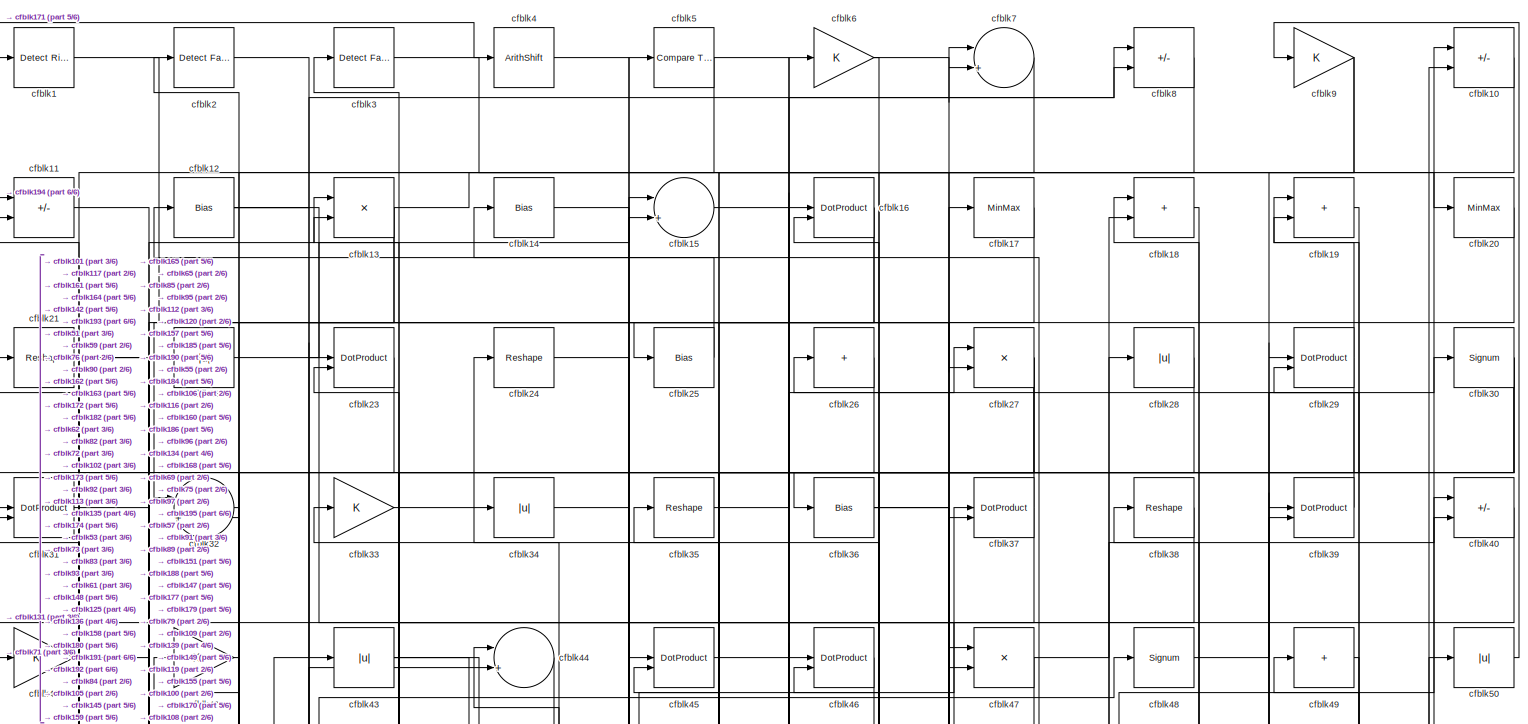
[diagram: root canvas - part 1/6, full width, top band]
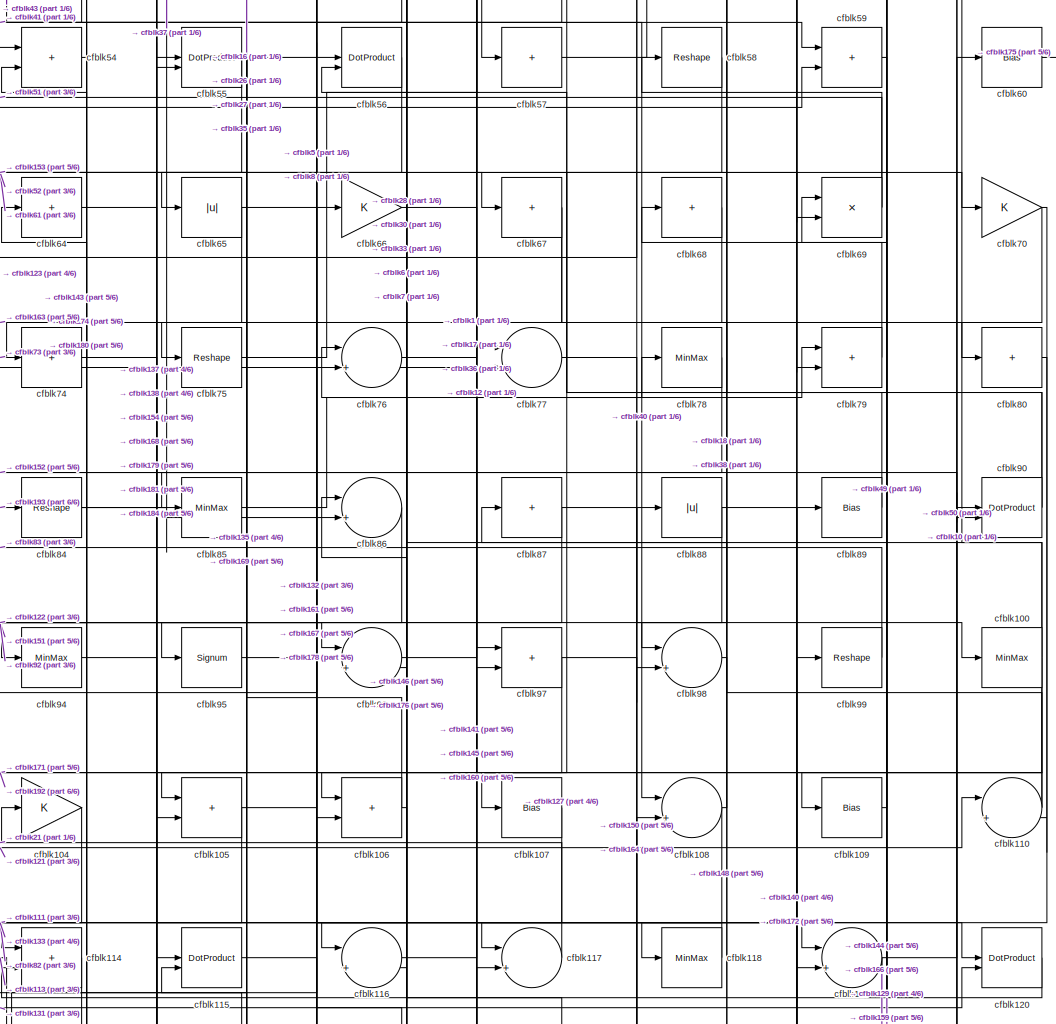
[diagram: root canvas - part 2/6, central region]
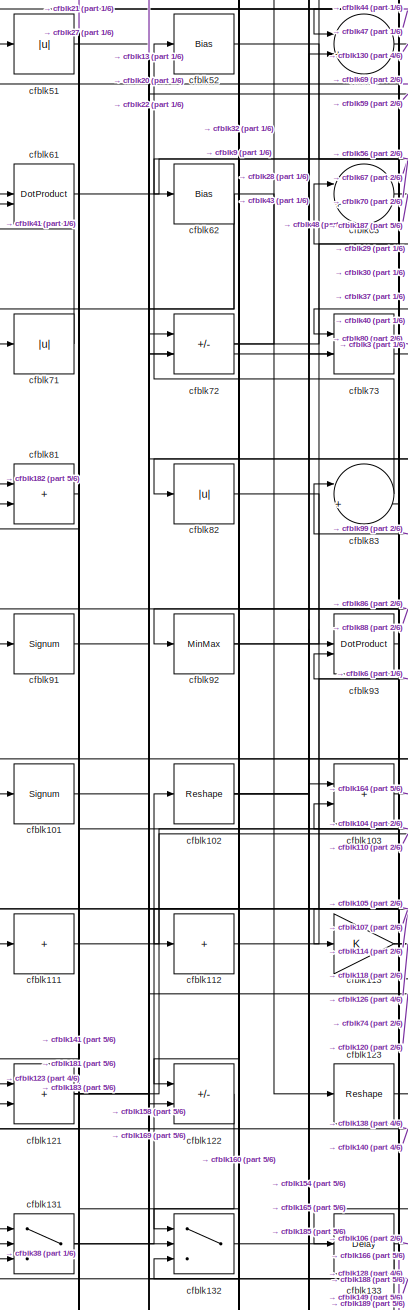
[diagram: root canvas - part 3/6, middle left region]
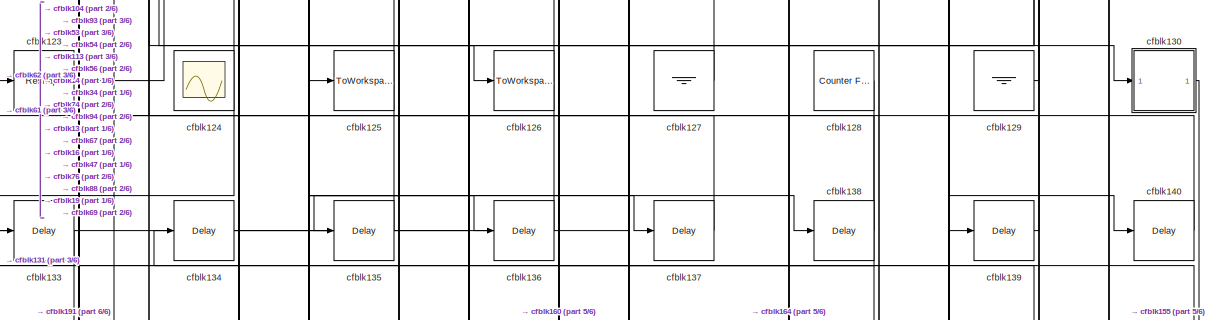
[diagram: root canvas - part 4/6, full width, middle band]
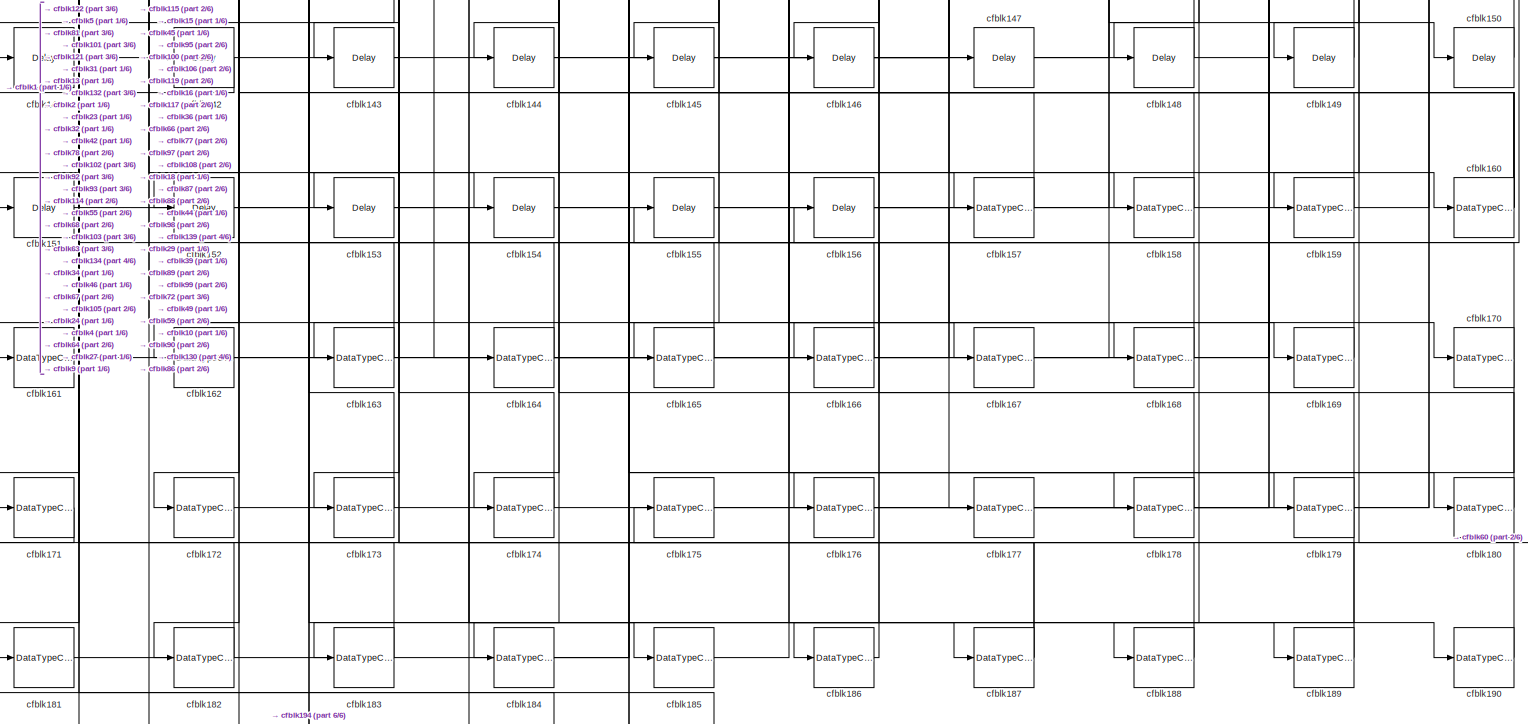
[diagram: root canvas - part 5/6, full width, bottom band]
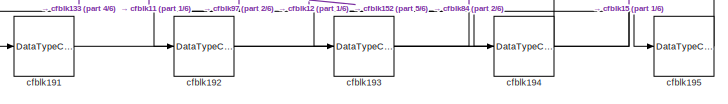
[diagram: root canvas - part 6/6, bottom left region]
MODEL slx_bc5b32de92f5
KIND model
CONFIG AbsTol = auto
CONFIG EnableMultiTasking = off
CONFIG FixedStep = auto
CONFIG MaxStep = auto
CONFIG MinStep = auto
CONFIG RelTol = 1e-3
CONFIG SampleTimeConstraint = Unconstrained
CONFIG SolverName = VariableStepAuto
CONFIG StartTime = 0.0
CONFIG StopTime = 10.0
BLOCK [Reference] cfblk1  REF=hdlsllib/Logic and Bit
Operations/Detect Rise
Positive
  SourceBlock = hdlsllib/Logic and Bit\nOperations/Detect Rise\nPositive
  SourceType = Detect Rise Positive
BLOCK [Sum] cfblk10
  IconShape = rectangular
  Inputs = +-
BLOCK [MinMax] cfblk100
BLOCK [Signum] cfblk101
BLOCK [Reshape] cfblk102
BLOCK [Sum] cfblk103
  IconShape = rectangular
BLOCK [Gain] cfblk104
BLOCK [Sum] cfblk105
  IconShape = rectangular
BLOCK [Sum] cfblk106
  IconShape = rectangular
BLOCK [Bias] cfblk107
  Bias = 0.0
  SaturateOnIntegerOverflow = off
BLOCK [Sum] cfblk108
  Inputs = |++
BLOCK [Bias] cfblk109
  Bias = 0.0
  SaturateOnIntegerOverflow = off
BLOCK [Sum] cfblk11
  IconShape = rectangular
  Inputs = +-
BLOCK [Sum] cfblk110
  Inputs = |++
BLOCK [Sum] cfblk111
  IconShape = rectangular
  Inputs = +
BLOCK [Sum] cfblk112
  IconShape = rectangular
  Inputs = +
BLOCK [Gain] cfblk113
BLOCK [Sum] cfblk114
  IconShape = rectangular
BLOCK [DotProduct] cfblk115
  OutDataTypeStr = Inherit: Inherit via internal rule
BLOCK [Sum] cfblk116
  Inputs = |++
BLOCK [Sum] cfblk117
  Inputs = |++
BLOCK [MinMax] cfblk118
BLOCK [Sum] cfblk119
  Inputs = |++
BLOCK [Bias] cfblk12
  Bias = 0.0
  SaturateOnIntegerOverflow = off
BLOCK [DotProduct] cfblk120
  OutDataTypeStr = Inherit: Inherit via internal rule
BLOCK [Sum] cfblk121
  IconShape = rectangular
BLOCK [Sum] cfblk122
  IconShape = rectangular
  Inputs = +-
BLOCK [Reshape] cfblk123
BLOCK [Scope] cfblk124
  Floating = on
  NumInputPorts = 1
  ScopeSpecificationString = Simulink.scopes.TimeScopeBlockCfg('CurrentConfiguration', extmgr.ConfigurationSet(extmgr.Configuration('Core','General UI',true,'FigureColor',[0.156862745098039 0.156862745098039 0.156862745098039]),extmgr.Configuration('Core','Source UI',true),extmgr.Configuration('Sources','WiredSimulink',true,'DataLoggingVariableName','ScopeData1','DataLoggingSaveFormat','StructureWithTime','DataLoggingLimitDat...<+2713ch>
BLOCK [ToWorkspace] cfblk125
  MaxDataPoints = inf
  SampleTime = -1
  SaveFormat = Timeseries
  VariableName = simout
BLOCK [ToWorkspace] cfblk126
  MaxDataPoints = inf
  SampleTime = -1
  SaveFormat = Timeseries
  VariableName = simout
BLOCK [Ground] cfblk127
BLOCK [Reference] cfblk128  REF=hdlsllib/Sources/Counter
Free-Running
  SourceBlock = hdlsllib/Sources/Counter\nFree-Running
  SourceType = Counter Free-Running
BLOCK [Ground] cfblk129
BLOCK [Product] cfblk13
  Inputs = */
  RndMeth = Zero
  SaturateOnIntegerOverflow = on
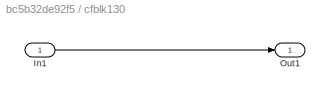
BLOCK [SubSystem] cfblk130
  LibrarySourceBlock = hdlsllib/Ports &\nSubsystems/Subsystem
BLOCK [Inport] cfblk130/In1
BLOCK [Outport] cfblk130/Out1
BLOCK [Switch] cfblk131
  InputSameDT = off
  SaturateOnIntegerOverflow = off
BLOCK [Switch] cfblk132
  InputSameDT = off
  SaturateOnIntegerOverflow = off
BLOCK [Delay] cfblk133
  InputPortMap = u0
  SampleTime = 1
BLOCK [Delay] cfblk134
  InputPortMap = u0
  SampleTime = 1
BLOCK [Delay] cfblk135
  InputPortMap = u0
  SampleTime = 1
BLOCK [Delay] cfblk136
  InputPortMap = u0
  SampleTime = 1
BLOCK [Delay] cfblk137
  InputPortMap = u0
  SampleTime = 1
BLOCK [Delay] cfblk138
  InputPortMap = u0
  SampleTime = 1
BLOCK [Delay] cfblk139
  InputPortMap = u0
  SampleTime = 1
BLOCK [Bias] cfblk14
  Bias = 0.0
  SaturateOnIntegerOverflow = off
BLOCK [Delay] cfblk140
  InputPortMap = u0
  SampleTime = 1
BLOCK [Delay] cfblk141
  InputPortMap = u0
  SampleTime = 1
BLOCK [Delay] cfblk142
  InputPortMap = u0
  SampleTime = 1
BLOCK [Delay] cfblk143
  InputPortMap = u0
  SampleTime = 1
BLOCK [Delay] cfblk144
  InputPortMap = u0
  SampleTime = 1
BLOCK [Delay] cfblk145
  InputPortMap = u0
  SampleTime = 1
BLOCK [Delay] cfblk146
  InputPortMap = u0
  SampleTime = 1
BLOCK [Delay] cfblk147
  InputPortMap = u0
  SampleTime = 1
BLOCK [Delay] cfblk148
  InputPortMap = u0
  SampleTime = 1
BLOCK [Delay] cfblk149
  InputPortMap = u0
  SampleTime = 1
BLOCK [Sum] cfblk15
  Inputs = |++
BLOCK [Delay] cfblk150
  InputPortMap = u0
  SampleTime = 1
BLOCK [Delay] cfblk151
  InputPortMap = u0
  SampleTime = 1
BLOCK [Delay] cfblk152
  InputPortMap = u0
  SampleTime = 1
BLOCK [Delay] cfblk153
  InputPortMap = u0
  SampleTime = 1
BLOCK [Delay] cfblk154
  InputPortMap = u0
  SampleTime = 1
BLOCK [Delay] cfblk155
  InputPortMap = u0
  SampleTime = 1
BLOCK [Delay] cfblk156
  InputPortMap = u0
  SampleTime = 1
BLOCK [DataTypeConversion] cfblk157
  OutDataTypeStr = uint8
  RndMeth = Floor
  SaturateOnIntegerOverflow = off
BLOCK [DataTypeConversion] cfblk158
  OutDataTypeStr = uint8
  RndMeth = Floor
  SaturateOnIntegerOverflow = off
BLOCK [DataTypeConversion] cfblk159
  OutDataTypeStr = uint8
  RndMeth = Floor
  SaturateOnIntegerOverflow = off
BLOCK [DotProduct] cfblk16
  OutDataTypeStr = Inherit: Inherit via internal rule
BLOCK [DataTypeConversion] cfblk160
  RndMeth = Floor
  SaturateOnIntegerOverflow = off
BLOCK [DataTypeConversion] cfblk161
  OutDataTypeStr = uint8
  RndMeth = Floor
  SaturateOnIntegerOverflow = off
BLOCK [DataTypeConversion] cfblk162
  OutDataTypeStr = uint8
  RndMeth = Floor
  SaturateOnIntegerOverflow = off
BLOCK [DataTypeConversion] cfblk163
  OutDataTypeStr = uint8
  RndMeth = Floor
  SaturateOnIntegerOverflow = off
BLOCK [DataTypeConversion] cfblk164
  RndMeth = Floor
  SaturateOnIntegerOverflow = off
BLOCK [DataTypeConversion] cfblk165
  OutDataTypeStr = uint8
  RndMeth = Floor
  SaturateOnIntegerOverflow = off
BLOCK [DataTypeConversion] cfblk166
  OutDataTypeStr = uint8
  RndMeth = Floor
  SaturateOnIntegerOverflow = off
BLOCK [DataTypeConversion] cfblk167
  OutDataTypeStr = uint8
  RndMeth = Floor
  SaturateOnIntegerOverflow = off
BLOCK [DataTypeConversion] cfblk168
  OutDataTypeStr = uint8
  RndMeth = Floor
  SaturateOnIntegerOverflow = off
BLOCK [DataTypeConversion] cfblk169
  OutDataTypeStr = uint8
  RndMeth = Floor
  SaturateOnIntegerOverflow = off
BLOCK [MinMax] cfblk17
BLOCK [DataTypeConversion] cfblk170
  RndMeth = Floor
  SaturateOnIntegerOverflow = off
BLOCK [DataTypeConversion] cfblk171
  OutDataTypeStr = uint8
  RndMeth = Floor
  SaturateOnIntegerOverflow = off
BLOCK [DataTypeConversion] cfblk172
  OutDataTypeStr = uint8
  RndMeth = Floor
  SaturateOnIntegerOverflow = off
BLOCK [DataTypeConversion] cfblk173
  OutDataTypeStr = uint8
  RndMeth = Floor
  SaturateOnIntegerOverflow = off
BLOCK [DataTypeConversion] cfblk174
  OutDataTypeStr = uint8
  RndMeth = Floor
  SaturateOnIntegerOverflow = off
BLOCK [DataTypeConversion] cfblk175
  OutDataTypeStr = uint8
  RndMeth = Floor
  SaturateOnIntegerOverflow = off
BLOCK [DataTypeConversion] cfblk176
  OutDataTypeStr = uint8
  RndMeth = Floor
  SaturateOnIntegerOverflow = off
BLOCK [DataTypeConversion] cfblk177
  OutDataTypeStr = uint8
  RndMeth = Floor
  SaturateOnIntegerOverflow = off
BLOCK [DataTypeConversion] cfblk178
  OutDataTypeStr = uint8
  RndMeth = Floor
  SaturateOnIntegerOverflow = off
BLOCK [DataTypeConversion] cfblk179
  RndMeth = Floor
  SaturateOnIntegerOverflow = off
BLOCK [Sum] cfblk18
  IconShape = rectangular
BLOCK [DataTypeConversion] cfblk180
  OutDataTypeStr = uint8
  RndMeth = Floor
  SaturateOnIntegerOverflow = off
BLOCK [DataTypeConversion] cfblk181
  OutDataTypeStr = uint8
  RndMeth = Floor
  SaturateOnIntegerOverflow = off
BLOCK [DataTypeConversion] cfblk182
  OutDataTypeStr = uint8
  RndMeth = Floor
  SaturateOnIntegerOverflow = off
BLOCK [DataTypeConversion] cfblk183
  OutDataTypeStr = uint8
  RndMeth = Floor
  SaturateOnIntegerOverflow = off
BLOCK [DataTypeConversion] cfblk184
  OutDataTypeStr = uint8
  RndMeth = Floor
  SaturateOnIntegerOverflow = off
BLOCK [DataTypeConversion] cfblk185
  OutDataTypeStr = uint8
  RndMeth = Floor
  SaturateOnIntegerOverflow = off
BLOCK [DataTypeConversion] cfblk186
  OutDataTypeStr = uint8
  RndMeth = Floor
  SaturateOnIntegerOverflow = off
BLOCK [DataTypeConversion] cfblk187
  RndMeth = Floor
  SaturateOnIntegerOverflow = off
BLOCK [DataTypeConversion] cfblk188
  OutDataTypeStr = uint8
  RndMeth = Floor
  SaturateOnIntegerOverflow = off
BLOCK [DataTypeConversion] cfblk189
  OutDataTypeStr = uint8
  RndMeth = Floor
  SaturateOnIntegerOverflow = off
BLOCK [Sum] cfblk19
  IconShape = rectangular
BLOCK [DataTypeConversion] cfblk190
  OutDataTypeStr = uint8
  RndMeth = Floor
  SaturateOnIntegerOverflow = off
BLOCK [DataTypeConversion] cfblk191
  OutDataTypeStr = uint8
  RndMeth = Floor
  SaturateOnIntegerOverflow = off
BLOCK [DataTypeConversion] cfblk192
  OutDataTypeStr = uint8
  RndMeth = Floor
  SaturateOnIntegerOverflow = off
BLOCK [DataTypeConversion] cfblk193
  OutDataTypeStr = uint8
  RndMeth = Floor
  SaturateOnIntegerOverflow = off
BLOCK [DataTypeConversion] cfblk194
  OutDataTypeStr = uint8
  RndMeth = Floor
  SaturateOnIntegerOverflow = off
BLOCK [DataTypeConversion] cfblk195
  OutDataTypeStr = uint8
  RndMeth = Floor
  SaturateOnIntegerOverflow = off
BLOCK [Reference] cfblk2  REF=hdlsllib/Logic and Bit
Operations/Detect Fall
Nonpositive
  SourceBlock = hdlsllib/Logic and Bit\nOperations/Detect Fall\nNonpositive
  SourceType = Detect Fall Nonpositive
BLOCK [MinMax] cfblk20
BLOCK [Reshape] cfblk21
BLOCK [Abs] cfblk22
  SaturateOnIntegerOverflow = off
BLOCK [DotProduct] cfblk23
  OutDataTypeStr = Inherit: Inherit via internal rule
BLOCK [Reshape] cfblk24
BLOCK [Bias] cfblk25
  Bias = 0.0
  SaturateOnIntegerOverflow = off
BLOCK [Sum] cfblk26
  IconShape = rectangular
  Inputs = +
BLOCK [Product] cfblk27
  Inputs = */
  RndMeth = Zero
  SaturateOnIntegerOverflow = on
BLOCK [Abs] cfblk28
  SaturateOnIntegerOverflow = off
BLOCK [DotProduct] cfblk29
  OutDataTypeStr = Inherit: Inherit via internal rule
BLOCK [Reference] cfblk3  REF=hdlsllib/Logic and Bit
Operations/Detect Fall
Nonpositive
  SourceBlock = hdlsllib/Logic and Bit\nOperations/Detect Fall\nNonpositive
  SourceType = Detect Fall Nonpositive
BLOCK [Signum] cfblk30
BLOCK [DotProduct] cfblk31
  OutDataTypeStr = Inherit: Inherit via internal rule
BLOCK [Sum] cfblk32
  Inputs = |++
BLOCK [Gain] cfblk33
BLOCK [Abs] cfblk34
  SaturateOnIntegerOverflow = off
BLOCK [Reshape] cfblk35
BLOCK [Bias] cfblk36
  Bias = 0.0
  SaturateOnIntegerOverflow = off
BLOCK [DotProduct] cfblk37
  OutDataTypeStr = Inherit: Inherit via internal rule
BLOCK [Reshape] cfblk38
BLOCK [DotProduct] cfblk39
  OutDataTypeStr = Inherit: Inherit via internal rule
BLOCK [ArithShift] cfblk4
  BitShiftNumber = 8
  InputPortMap = u0
BLOCK [Sum] cfblk40
  IconShape = rectangular
  Inputs = +-
BLOCK [Gain] cfblk41
BLOCK [Gain] cfblk42
BLOCK [Abs] cfblk43
  SaturateOnIntegerOverflow = off
BLOCK [Sum] cfblk44
  Inputs = |++
BLOCK [DotProduct] cfblk45
  OutDataTypeStr = Inherit: Inherit via internal rule
BLOCK [DotProduct] cfblk46
  OutDataTypeStr = Inherit: Inherit via internal rule
BLOCK [Product] cfblk47
  Inputs = */
  RndMeth = Zero
  SaturateOnIntegerOverflow = on
BLOCK [Signum] cfblk48
BLOCK [Sum] cfblk49
  IconShape = rectangular
  Inputs = +
BLOCK [Reference] cfblk5  REF=hdlsllib/Logic and Bit
Operations/Compare
To Constant
  SourceBlock = hdlsllib/Logic and Bit\nOperations/Compare\nTo Constant
  SourceType = Compare To Constant
BLOCK [Abs] cfblk50
  SaturateOnIntegerOverflow = off
BLOCK [Abs] cfblk51
  SaturateOnIntegerOverflow = off
BLOCK [Bias] cfblk52
  Bias = 0.0
  SaturateOnIntegerOverflow = off
BLOCK [Sum] cfblk53
  Inputs = |++
BLOCK [Sum] cfblk54
  IconShape = rectangular
BLOCK [DotProduct] cfblk55
  OutDataTypeStr = Inherit: Inherit via internal rule
BLOCK [DotProduct] cfblk56
  OutDataTypeStr = Inherit: Inherit via internal rule
BLOCK [Sum] cfblk57
  IconShape = rectangular
  Inputs = +
BLOCK [Reshape] cfblk58
BLOCK [Sum] cfblk59
  IconShape = rectangular
BLOCK [Gain] cfblk6
BLOCK [Bias] cfblk60
  Bias = 0.0
  SaturateOnIntegerOverflow = off
BLOCK [DotProduct] cfblk61
  OutDataTypeStr = Inherit: Inherit via internal rule
BLOCK [Bias] cfblk62
  Bias = 0.0
  SaturateOnIntegerOverflow = off
BLOCK [Sum] cfblk63
  Inputs = |++
BLOCK [Sum] cfblk64
  IconShape = rectangular
  Inputs = +
BLOCK [Abs] cfblk65
  SaturateOnIntegerOverflow = off
BLOCK [Gain] cfblk66
BLOCK [Sum] cfblk67
  IconShape = rectangular
  Inputs = +
BLOCK [Sum] cfblk68
  IconShape = rectangular
  Inputs = +
BLOCK [Product] cfblk69
  Inputs = */
  RndMeth = Zero
  SaturateOnIntegerOverflow = on
BLOCK [Sum] cfblk7
  Inputs = |++
BLOCK [Gain] cfblk70
BLOCK [Abs] cfblk71
  SaturateOnIntegerOverflow = off
BLOCK [Sum] cfblk72
  IconShape = rectangular
  Inputs = +-
BLOCK [Sum] cfblk73
  IconShape = rectangular
  Inputs = +-
BLOCK [Sum] cfblk74
  IconShape = rectangular
  Inputs = +
BLOCK [Reshape] cfblk75
BLOCK [Sum] cfblk76
  Inputs = |++
BLOCK [Sum] cfblk77
  Inputs = |++
BLOCK [MinMax] cfblk78
BLOCK [Sum] cfblk79
  IconShape = rectangular
BLOCK [Sum] cfblk8
  IconShape = rectangular
  Inputs = +-
BLOCK [Sum] cfblk80
  IconShape = rectangular
  Inputs = +
BLOCK [Sum] cfblk81
  IconShape = rectangular
BLOCK [Abs] cfblk82
  SaturateOnIntegerOverflow = off
BLOCK [Sum] cfblk83
  Inputs = |++
BLOCK [Reshape] cfblk84
BLOCK [MinMax] cfblk85
BLOCK [Sum] cfblk86
  Inputs = |++
BLOCK [Sum] cfblk87
  IconShape = rectangular
  Inputs = +
BLOCK [Abs] cfblk88
  SaturateOnIntegerOverflow = off
BLOCK [Bias] cfblk89
  Bias = 0.0
  SaturateOnIntegerOverflow = off
BLOCK [Gain] cfblk9
BLOCK [DotProduct] cfblk90
  OutDataTypeStr = Inherit: Inherit via internal rule
BLOCK [Signum] cfblk91
BLOCK [MinMax] cfblk92
BLOCK [DotProduct] cfblk93
  OutDataTypeStr = Inherit: Inherit via internal rule
BLOCK [MinMax] cfblk94
BLOCK [Signum] cfblk95
BLOCK [Sum] cfblk96
  Inputs = |++
BLOCK [Sum] cfblk97
  IconShape = rectangular
BLOCK [Sum] cfblk98
  Inputs = |++
BLOCK [Reshape] cfblk99
NET cfblk100:1 -> cfblk10:1, cfblk171:1, cfblk176:1, cfblk33:1
LINE cfblk101:1 -> cfblk158:1
NET cfblk102:1 -> cfblk154:1, cfblk44:2, cfblk53:2
LINE cfblk103:1 -> cfblk164:1
LINE cfblk104:1 -> cfblk133:1
NET cfblk105:1 -> cfblk122:2, cfblk77:2
NET cfblk106:1 -> cfblk146:1, cfblk35:1
LINE cfblk107:1 -> cfblk131:2
NET cfblk108:1 -> cfblk118:1, cfblk18:1
LINE cfblk109:1 -> cfblk49:1
LINE cfblk10:1 -> cfblk79:2
NET cfblk110:1 -> cfblk109:1, cfblk87:1
LINE cfblk111:1 -> cfblk104:1
LINE cfblk112:1 -> cfblk6:1
NET cfblk113:1 -> cfblk126:1, cfblk74:1
LINE cfblk114:1 -> cfblk143:1
LINE cfblk115:1 -> cfblk167:1
LINE cfblk116:1 -> cfblk37:2
LINE cfblk117:1 -> cfblk21:1
LINE cfblk118:1 -> cfblk111:1
NET cfblk119:1 -> cfblk144:1, cfblk166:1, cfblk50:1
LINE cfblk11:1 -> cfblk193:1
LINE cfblk120:1 -> cfblk114:2
NET cfblk121:1 -> cfblk110:1, cfblk169:1, cfblk59:2
LINE cfblk122:1 -> cfblk141:1
LINE cfblk123:1 -> cfblk56:1
LINE cfblk127:1 -> cfblk76:1
LINE cfblk128:1 -> cfblk131:1
LINE cfblk129:1 -> cfblk69:1
NET cfblk12:1 -> cfblk195:1, cfblk57:1, cfblk8:2
LINE cfblk130/In1:1 -> cfblk130/Out1:1
LINE cfblk130:1 -> cfblk155:1
NET cfblk131:1 -> cfblk102:1, cfblk120:2
LINE cfblk132:1 -> cfblk106:2
LINE cfblk133:1 -> cfblk191:1
LINE cfblk134:1 -> cfblk47:1
LINE cfblk135:1 -> cfblk13:2
LINE cfblk136:1 -> cfblk16:1
LINE cfblk137:1 -> cfblk54:1
LINE cfblk138:1 -> cfblk93:2
LINE cfblk139:1 -> cfblk19:2
NET cfblk13:1 -> cfblk182:1, cfblk20:1, cfblk73:2
LINE cfblk140:1 -> cfblk61:1
LINE cfblk141:1 -> cfblk77:1
LINE cfblk142:1 -> cfblk1:1
LINE cfblk143:1 -> cfblk173:1
LINE cfblk144:1 -> cfblk108:2
LINE cfblk145:1 -> cfblk117:2
LINE cfblk146:1 -> cfblk97:2
LINE cfblk147:1 -> cfblk29:1
LINE cfblk148:1 -> cfblk44:1
LINE cfblk149:1 -> cfblk72:1
LINE cfblk14:1 -> cfblk125:1
LINE cfblk150:1 -> cfblk86:1
LINE cfblk151:1 -> cfblk18:2
LINE cfblk152:1 -> cfblk194:1
LINE cfblk153:1 -> cfblk189:1
LINE cfblk154:1 -> cfblk105:2
LINE cfblk155:1 -> cfblk10:2
LINE cfblk156:1 -> cfblk177:1
LINE cfblk157:1 -> cfblk34:1
LINE cfblk158:1 -> cfblk45:1
LINE cfblk159:1 -> cfblk45:2
LINE cfblk15:1 -> cfblk190:1
NET cfblk160:1 -> cfblk132:3, cfblk134:1, cfblk16:2, cfblk2:1
LINE cfblk161:1 -> cfblk66:1
LINE cfblk162:1 -> cfblk147:1
LINE cfblk163:1 -> cfblk42:1
NET cfblk164:1 -> cfblk139:1, cfblk31:2, cfblk88:1
LINE cfblk165:1 -> cfblk103:1
LINE cfblk166:1 -> cfblk103:2
LINE cfblk167:1 -> cfblk99:1
LINE cfblk168:1 -> cfblk115:1
LINE cfblk169:1 -> cfblk115:2
NET cfblk16:1 -> cfblk105:1, cfblk85:1
NET cfblk170:1 -> cfblk186:1, cfblk32:2
LINE cfblk171:1 -> cfblk4:1
LINE cfblk172:1 -> cfblk89:1
LINE cfblk173:1 -> cfblk23:1
LINE cfblk174:1 -> cfblk23:2
LINE cfblk175:1 -> cfblk90:1
LINE cfblk176:1 -> cfblk60:1
LINE cfblk177:1 -> cfblk39:2
LINE cfblk178:1 -> cfblk156:1
NET cfblk179:1 -> cfblk183:1, cfblk39:1
LINE cfblk17:1 -> cfblk32:1
LINE cfblk180:1 -> cfblk64:1
LINE cfblk181:1 -> cfblk55:1
LINE cfblk182:1 -> cfblk81:1
LINE cfblk183:1 -> cfblk81:2
LINE cfblk184:1 -> cfblk55:2
LINE cfblk185:1 -> cfblk46:1
LINE cfblk186:1 -> cfblk46:2
NET cfblk187:1 -> cfblk121:2, cfblk93:1
LINE cfblk188:1 -> cfblk63:1
LINE cfblk189:1 -> cfblk63:2
LINE cfblk18:1 -> cfblk188:1
LINE cfblk190:1 -> cfblk29:2
LINE cfblk191:1 -> cfblk15:1
LINE cfblk192:1 -> cfblk15:2
LINE cfblk193:1 -> cfblk84:1
LINE cfblk194:1 -> cfblk11:1
LINE cfblk195:1 -> cfblk11:2
LINE cfblk19:1 -> cfblk36:1
LINE cfblk1:1 -> cfblk97:1
LINE cfblk20:1 -> cfblk72:2
NET cfblk21:1 -> cfblk71:1, cfblk76:2, cfblk90:2
LINE cfblk22:1 -> cfblk5:1
LINE cfblk23:1 -> cfblk172:1
LINE cfblk24:1 -> cfblk180:1
LINE cfblk25:1 -> cfblk14:1
LINE cfblk26:1 -> cfblk95:1
NET cfblk27:1 -> cfblk101:1, cfblk145:1, cfblk65:1
LINE cfblk28:1 -> cfblk106:1
NET cfblk29:1 -> cfblk19:1, cfblk53:1
LINE cfblk2:1 -> cfblk27:2
NET cfblk30:1 -> cfblk62:1, cfblk73:1, cfblk96:2
LINE cfblk31:1 -> cfblk142:1
LINE cfblk32:1 -> cfblk112:1
LINE cfblk33:1 -> cfblk24:1
LINE cfblk34:1 -> cfblk136:1
LINE cfblk35:1 -> cfblk27:1
NET cfblk36:1 -> cfblk168:1, cfblk69:2
NET cfblk37:1 -> cfblk113:1, cfblk31:1
LINE cfblk38:1 -> cfblk131:3
LINE cfblk39:1 -> cfblk26:1
LINE cfblk3:1 -> cfblk47:2
LINE cfblk40:1 -> cfblk83:2
LINE cfblk41:1 -> cfblk59:1
LINE cfblk42:1 -> cfblk162:1
NET cfblk43:1 -> cfblk108:1, cfblk96:1
LINE cfblk44:1 -> cfblk61:2
LINE cfblk45:1 -> cfblk157:1
LINE cfblk46:1 -> cfblk184:1
NET cfblk47:1 -> cfblk40:2, cfblk91:1
LINE cfblk48:1 -> cfblk30:1
LINE cfblk49:1 -> cfblk149:1
LINE cfblk4:1 -> cfblk170:1
LINE cfblk50:1 -> cfblk9:1
LINE cfblk51:1 -> cfblk13:1
LINE cfblk52:1 -> cfblk70:1
LINE cfblk53:1 -> cfblk130:1
LINE cfblk54:1 -> cfblk94:1
NET cfblk55:1 -> cfblk153:1, cfblk8:1
LINE cfblk56:1 -> cfblk132:1
LINE cfblk57:1 -> cfblk40:1
LINE cfblk58:1 -> cfblk107:1
LINE cfblk59:1 -> cfblk159:1
NET cfblk5:1 -> cfblk120:1, cfblk161:1
LINE cfblk60:1 -> cfblk175:1
LINE cfblk61:1 -> cfblk67:1
NET cfblk62:1 -> cfblk121:1, cfblk123:1, cfblk132:2
LINE cfblk63:1 -> cfblk187:1
LINE cfblk64:1 -> cfblk179:1
NET cfblk65:1 -> cfblk119:2, cfblk75:1
LINE cfblk66:1 -> cfblk160:1
NET cfblk67:1 -> cfblk135:1, cfblk174:1
LINE cfblk68:1 -> cfblk163:1
NET cfblk69:1 -> cfblk51:1, cfblk58:1
NET cfblk6:1 -> cfblk116:1, cfblk7:2
NET cfblk70:1 -> cfblk117:1, cfblk98:1
LINE cfblk71:1 -> cfblk41:1
NET cfblk72:1 -> cfblk28:1, cfblk43:1
LINE cfblk73:1 -> cfblk80:1
NET cfblk74:1 -> cfblk119:1, cfblk138:1, cfblk54:2
LINE cfblk75:1 -> cfblk17:1
LINE cfblk76:1 -> cfblk7:1
LINE cfblk77:1 -> cfblk100:1
LINE cfblk78:1 -> cfblk152:1
LINE cfblk79:1 -> cfblk38:1
LINE cfblk7:1 -> cfblk116:2
LINE cfblk80:1 -> cfblk110:2
LINE cfblk81:1 -> cfblk181:1
LINE cfblk82:1 -> cfblk114:1
LINE cfblk83:1 -> cfblk52:1
NET cfblk84:1 -> cfblk37:1, cfblk86:2
LINE cfblk85:1 -> cfblk79:1
LINE cfblk86:1 -> cfblk92:1
NET cfblk87:1 -> cfblk150:1, cfblk151:1
NET cfblk88:1 -> cfblk122:1, cfblk140:1
LINE cfblk89:1 -> cfblk12:1
LINE cfblk8:1 -> cfblk25:1
NET cfblk90:1 -> cfblk56:2, cfblk68:1
LINE cfblk91:1 -> cfblk22:1
NET cfblk92:1 -> cfblk185:1, cfblk48:1
LINE cfblk93:1 -> cfblk3:1
LINE cfblk94:1 -> cfblk137:1
LINE cfblk95:1 -> cfblk178:1
LINE cfblk96:1 -> cfblk78:1
NET cfblk97:1 -> cfblk192:1, cfblk98:2
LINE cfblk98:1 -> cfblk148:1
LINE cfblk99:1 -> cfblk83:1
NET cfblk9:1 -> cfblk165:1, cfblk82:1
note: NET lines group one-source signal fan-out (src -> all destinations, sorted); 1:1 wires keep LINE
